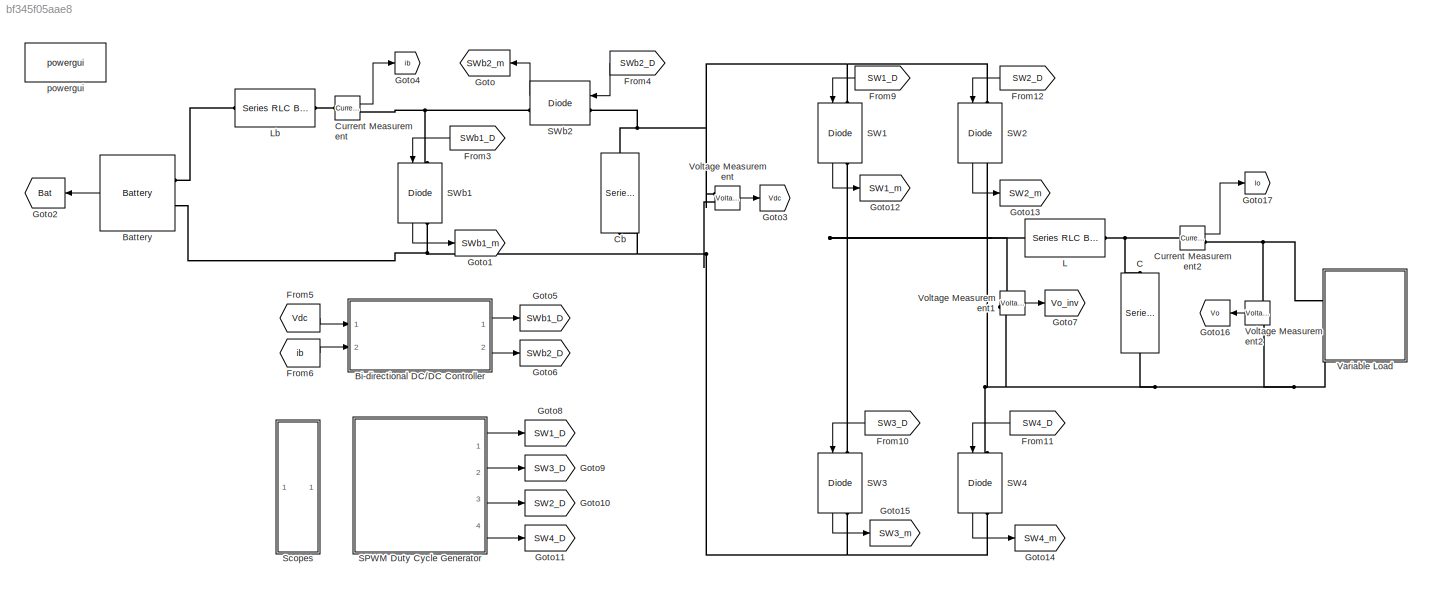
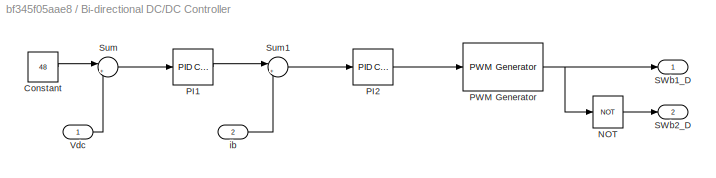
MODEL slx_bf345f05aae8
KIND model
CONFIG AbsTol = auto
CONFIG EnableMultiTasking = off
CONFIG FixedStep = auto
CONFIG MaxStep = auto
CONFIG MinStep = auto
CONFIG RelTol = 1e-3
CONFIG SampleTimeConstraint = Unconstrained
CONFIG SolverName = VariableStepAuto
CONFIG StartTime = 0.0
CONFIG StopTime = 8
WORKSPACE source: mxarray member
WORKSPACE Vdc = 1
BLOCK [Reference] Battery  REF=spsBatteryLib/Battery
  Ports = [0, 1, 0, 0, 0, 2]
  SourceBlock = spsBatteryLib/Battery
  SourceProductBaseCode = PS
  SourceType = Battery
BLOCK [SubSystem] Bi-directional DC//DC Controller
  Ports = [2, 2]
  RequestExecContextInheritance = off
BLOCK [Constant] Bi-directional DC//DC Controller/Constant
  Value = 48
BLOCK [Logic] Bi-directional DC//DC Controller/NOT
  AllPortsSameDT = off
  IconShape = distinctive
  Operator = NOT
  OutDataTypeStr = boolean
  Ports = [1, 1]
BLOCK [Reference] Bi-directional DC//DC Controller/PI1  REF=slpidlib/PID Controller
  Ports = [1, 1]
  SourceBlock = slpidlib/PID Controller
  SourceProductBaseCode = SL
  SourceType = PID 1dof
BLOCK [Reference] Bi-directional DC//DC Controller/PI2  REF=slpidlib/PID Controller
  Ports = [1, 1]
  SourceBlock = slpidlib/PID Controller
  SourceProductBaseCode = SL
  SourceType = PID 1dof
BLOCK [Reference] Bi-directional DC//DC Controller/PWM Generator  REF=eePwmGenerator/PWM Generator
  Ports = [1, 1]
  SourceBlock = eePwmGenerator/PWM Generator
  SourceProductBaseCode = PS
  SourceType = PWM Generator
BLOCK [Outport] Bi-directional DC//DC Controller/SWb1_D
BLOCK [Outport] Bi-directional DC//DC Controller/SWb2_D
  Port = 2
BLOCK [Sum] Bi-directional DC//DC Controller/Sum
  Inputs = |+-
  Ports = [2, 1]
BLOCK [Sum] Bi-directional DC//DC Controller/Sum1
  Inputs = |+-
  Ports = [2, 1]
BLOCK [Inport] Bi-directional DC//DC Controller/Vdc
BLOCK [Inport] Bi-directional DC//DC Controller/ib
  Port = 2
BLOCK [Reference] C  REF=spsSeriesRLCBranchLib/Series RLC Branch
  NameLocation = left
  Ports = [0, 0, 0, 0, 0, 1, 1]
  SourceBlock = spsSeriesRLCBranchLib/Series RLC Branch
  SourceProductBaseCode = PS
  SourceType = Series RLC Branch
BLOCK [Reference] Cb  REF=spsSeriesRLCBranchLib/Series RLC Branch
  NameLocation = left
  Ports = [0, 0, 0, 0, 0, 1, 1]
  SourceBlock = spsSeriesRLCBranchLib/Series RLC Branch
  SourceProductBaseCode = PS
  SourceType = Series RLC Branch
BLOCK [Reference] Current Measurement  REF=spsCurrentMeasurementLib/Current Measurement
  Ports = [0, 1, 0, 0, 0, 1, 1]
  SourceBlock = spsCurrentMeasurementLib/Current Measurement
  SourceProductBaseCode = PS
  SourceType = Current Measurement
  UserDataPersistent = on
BLOCK [Reference] Current Measurement2  REF=spsCurrentMeasurementLib/Current Measurement
  Ports = [0, 1, 0, 0, 0, 1, 1]
  SourceBlock = spsCurrentMeasurementLib/Current Measurement
  SourceProductBaseCode = PS
  SourceType = Current Measurement
  UserDataPersistent = on
BLOCK [From] From10
  GotoTag = SW3_D
  TagVisibility = global
BLOCK [From] From11
  GotoTag = SW4_D
  TagVisibility = global
BLOCK [From] From12
  GotoTag = SW2_D
  TagVisibility = global
BLOCK [From] From3
  GotoTag = SWb1_D
  TagVisibility = global
BLOCK [From] From4
  GotoTag = SWb2_D
  TagVisibility = global
BLOCK [From] From5
  GotoTag = Vdc
  TagVisibility = global
BLOCK [From] From6
  GotoTag = ib
  TagVisibility = global
BLOCK [From] From9
  GotoTag = SW1_D
  TagVisibility = global
BLOCK [Goto] Goto
  GotoTag = SWb2_m
  TagVisibility = global
BLOCK [Goto] Goto1
  GotoTag = SWb1_m
  TagVisibility = global
BLOCK [Goto] Goto10
  GotoTag = SW2_D
  TagVisibility = global
BLOCK [Goto] Goto11
  GotoTag = SW4_D
  TagVisibility = global
BLOCK [Goto] Goto12
  GotoTag = SW1_m
  TagVisibility = global
BLOCK [Goto] Goto13
  GotoTag = SW2_m
  TagVisibility = global
BLOCK [Goto] Goto14
  GotoTag = SW4_m
  TagVisibility = global
BLOCK [Goto] Goto15
  GotoTag = SW3_m
  TagVisibility = global
BLOCK [Goto] Goto16
  GotoTag = Vo
  TagVisibility = global
BLOCK [Goto] Goto17
  GotoTag = Io
  TagVisibility = global
BLOCK [Goto] Goto2
  GotoTag = Bat
  TagVisibility = global
BLOCK [Goto] Goto3
  GotoTag = Vdc
  TagVisibility = global
BLOCK [Goto] Goto4
  GotoTag = ib
  TagVisibility = global
BLOCK [Goto] Goto5
  GotoTag = SWb1_D
  TagVisibility = global
BLOCK [Goto] Goto6
  GotoTag = SWb2_D
  TagVisibility = global
BLOCK [Goto] Goto7
  GotoTag = Vo_inv
  TagVisibility = global
BLOCK [Goto] Goto8
  GotoTag = SW1_D
  TagVisibility = global
BLOCK [Goto] Goto9
  GotoTag = SW3_D
  TagVisibility = global
BLOCK [Reference] L  REF=spsSeriesRLCBranchLib/Series RLC Branch
  Ports = [0, 0, 0, 0, 0, 1, 1]
  SourceBlock = spsSeriesRLCBranchLib/Series RLC Branch
  SourceProductBaseCode = PS
  SourceType = Series RLC Branch
BLOCK [Reference] Lb  REF=spsSeriesRLCBranchLib/Series RLC Branch
  Ports = [0, 0, 0, 0, 0, 1, 1]
  SourceBlock = spsSeriesRLCBranchLib/Series RLC Branch
  SourceProductBaseCode = PS
  SourceType = Series RLC Branch
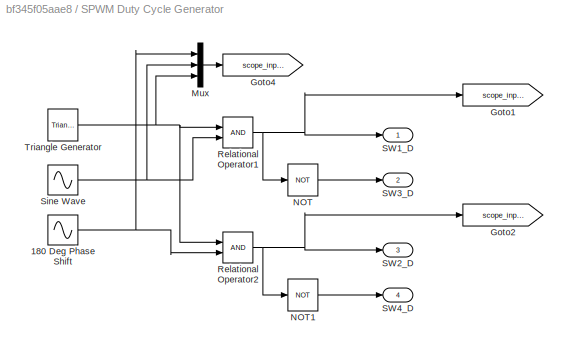
BLOCK [SubSystem] SPWM Duty Cycle Generator
  Ports = [0, 4]
  RequestExecContextInheritance = off
BLOCK [Sin] SPWM Duty Cycle Generator/180 Deg Phase Shift
  Amplitude = 0.95
  Frequency = 2*pi*50
  Phase = pi
  Ports = [0, 1]
  SampleTime = 0
BLOCK [Goto] SPWM Duty Cycle Generator/Goto1
  GotoTag = scope_input_2
  TagVisibility = global
BLOCK [Goto] SPWM Duty Cycle Generator/Goto2
  GotoTag = scope_input_3
  TagVisibility = global
BLOCK [Goto] SPWM Duty Cycle Generator/Goto4
  GotoTag = scope_input_1
  TagVisibility = global
BLOCK [Mux] SPWM Duty Cycle Generator/Mux
  DisplayOption = bar
  Inputs = 3
  Ports = [3, 1]
BLOCK [Logic] SPWM Duty Cycle Generator/NOT
  AllPortsSameDT = off
  IconShape = distinctive
  Operator = NOT
  OutDataTypeStr = boolean
  Ports = [1, 1]
BLOCK [Logic] SPWM Duty Cycle Generator/NOT1
  AllPortsSameDT = off
  IconShape = distinctive
  Operator = NOT
  OutDataTypeStr = boolean
  Ports = [1, 1]
BLOCK [RelationalOperator] SPWM Duty Cycle Generator/Relational Operator1
  InputSameDT = off
  OutDataTypeStr = boolean
  Ports = [2, 1]
  RndMeth = Simplest
BLOCK [RelationalOperator] SPWM Duty Cycle Generator/Relational Operator2
  InputSameDT = off
  OutDataTypeStr = boolean
  Ports = [2, 1]
  RndMeth = Simplest
BLOCK [Outport] SPWM Duty Cycle Generator/SW1_D
BLOCK [Outport] SPWM Duty Cycle Generator/SW2_D
  Port = 3
BLOCK [Outport] SPWM Duty Cycle Generator/SW3_D
  Port = 2
BLOCK [Outport] SPWM Duty Cycle Generator/SW4_D
  Port = 4
BLOCK [Sin] SPWM Duty Cycle Generator/Sine Wave
  Amplitude = 0.95
  Frequency = 2*pi*50
  Ports = [0, 1]
  SampleTime = 0
BLOCK [Reference] SPWM Duty Cycle Generator/Triangle Generator  REF=plecslib_extras2/Modulators/Triangle
Generator
  Ports = [0, 1]
  SourceBlock = plecslib_extras2/Modulators/Triangle\nGenerator
  SourceProductName = PLECS Extras
  SourceType = Symmetric Triangle Generator
BLOCK [Reference] SW1  REF=spsIGBTDiodeLib/IGBT//Diode
  NameLocation = left
  Ports = [1, 1, 0, 0, 0, 1, 1]
  SourceBlock = spsIGBTDiodeLib/IGBT//Diode
  SourceProductBaseCode = PS
  SourceType = IGBT/Diode
BLOCK [Reference] SW2  REF=spsIGBTDiodeLib/IGBT//Diode
  NameLocation = left
  Ports = [1, 1, 0, 0, 0, 1, 1]
  SourceBlock = spsIGBTDiodeLib/IGBT//Diode
  SourceProductBaseCode = PS
  SourceType = IGBT/Diode
BLOCK [Reference] SW3  REF=spsIGBTDiodeLib/IGBT//Diode
  NameLocation = left
  Ports = [1, 1, 0, 0, 0, 1, 1]
  SourceBlock = spsIGBTDiodeLib/IGBT//Diode
  SourceProductBaseCode = PS
  SourceType = IGBT/Diode
BLOCK [Reference] SW4  REF=spsIGBTDiodeLib/IGBT//Diode
  NameLocation = left
  Ports = [1, 1, 0, 0, 0, 1, 1]
  SourceBlock = spsIGBTDiodeLib/IGBT//Diode
  SourceProductBaseCode = PS
  SourceType = IGBT/Diode
BLOCK [Reference] SWb1  REF=spsIGBTDiodeLib/IGBT//Diode
  NameLocation = left
  Ports = [1, 1, 0, 0, 0, 1, 1]
  SourceBlock = spsIGBTDiodeLib/IGBT//Diode
  SourceProductBaseCode = PS
  SourceType = IGBT/Diode
BLOCK [Reference] SWb2  REF=spsIGBTDiodeLib/IGBT//Diode
  Ports = [1, 1, 0, 0, 0, 1, 1]
  SourceBlock = spsIGBTDiodeLib/IGBT//Diode
  SourceProductBaseCode = PS
  SourceType = IGBT/Diode
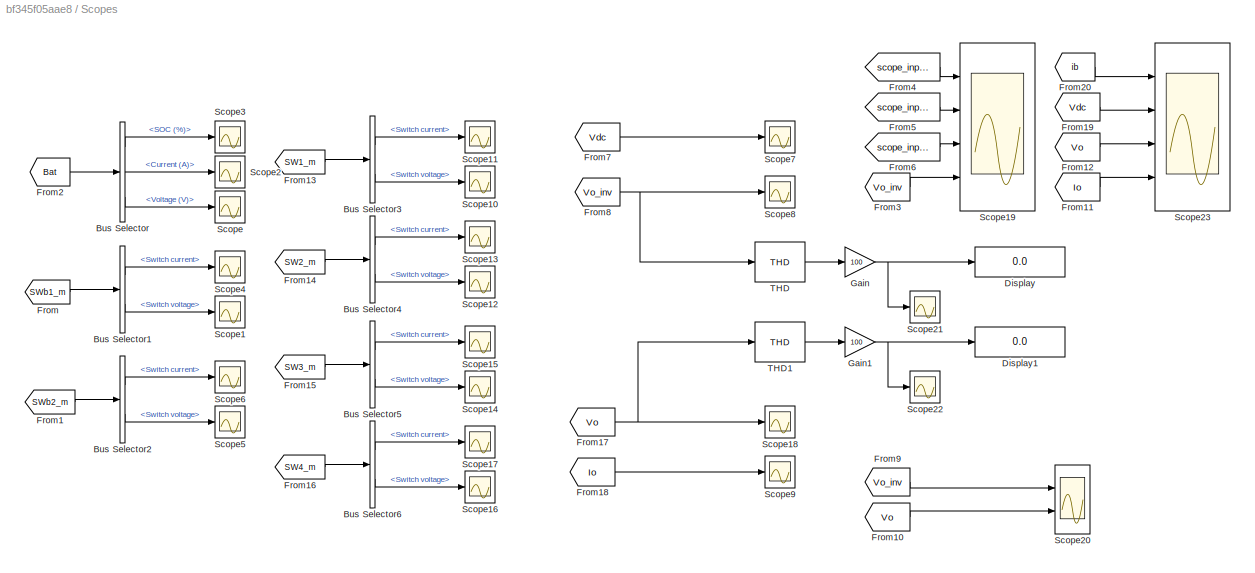
BLOCK [SubSystem] Scopes
  Ports = []
  RequestExecContextInheritance = off
BLOCK [BusSelector] Scopes/Bus Selector
  NameLocation = top
  OutputSignals = SOC (%),Current (A),Voltage (V)
  Ports = [1, 3]
BLOCK [BusSelector] Scopes/Bus Selector1
  NameLocation = top
  OutputSignals = Switch current,Switch voltage
  Ports = [1, 2]
BLOCK [BusSelector] Scopes/Bus Selector2
  NameLocation = top
  OutputSignals = Switch current,Switch voltage
  Ports = [1, 2]
BLOCK [BusSelector] Scopes/Bus Selector3
  NameLocation = top
  OutputSignals = Switch current,Switch voltage
  Ports = [1, 2]
BLOCK [BusSelector] Scopes/Bus Selector4
  NameLocation = top
  OutputSignals = Switch current,Switch voltage
  Ports = [1, 2]
BLOCK [BusSelector] Scopes/Bus Selector5
  NameLocation = top
  OutputSignals = Switch current,Switch voltage
  Ports = [1, 2]
BLOCK [BusSelector] Scopes/Bus Selector6
  NameLocation = top
  OutputSignals = Switch current,Switch voltage
  Ports = [1, 2]
BLOCK [Display] Scopes/Display
  Decimation = 1
  Ports = [1]
BLOCK [Display] Scopes/Display1
  Decimation = 1
  Ports = [1]
BLOCK [From] Scopes/From
  GotoTag = SWb1_m
  TagVisibility = global
BLOCK [From] Scopes/From1
  GotoTag = SWb2_m
  TagVisibility = global
BLOCK [From] Scopes/From10
  GotoTag = Vo
  TagVisibility = global
BLOCK [From] Scopes/From11
  GotoTag = Io
  TagVisibility = global
BLOCK [From] Scopes/From12
  GotoTag = Vo
  TagVisibility = global
BLOCK [From] Scopes/From13
  GotoTag = SW1_m
  TagVisibility = global
BLOCK [From] Scopes/From14
  GotoTag = SW2_m
  TagVisibility = global
BLOCK [From] Scopes/From15
  GotoTag = SW3_m
  TagVisibility = global
BLOCK [From] Scopes/From16
  GotoTag = SW4_m
  TagVisibility = global
BLOCK [From] Scopes/From17
  GotoTag = Vo
  TagVisibility = global
BLOCK [From] Scopes/From18
  GotoTag = Io
  TagVisibility = global
BLOCK [From] Scopes/From19
  GotoTag = Vdc
  TagVisibility = global
BLOCK [From] Scopes/From2
  GotoTag = Bat
  TagVisibility = global
BLOCK [From] Scopes/From20
  GotoTag = ib
  TagVisibility = global
BLOCK [From] Scopes/From3
  GotoTag = Vo_inv
  TagVisibility = global
BLOCK [From] Scopes/From4
  GotoTag = scope_input_1
  TagVisibility = global
BLOCK [From] Scopes/From5
  GotoTag = scope_input_2
  TagVisibility = global
BLOCK [From] Scopes/From6
  GotoTag = scope_input_3
  TagVisibility = global
BLOCK [From] Scopes/From7
  GotoTag = Vdc
  TagVisibility = global
BLOCK [From] Scopes/From8
  GotoTag = Vo_inv
  TagVisibility = global
BLOCK [From] Scopes/From9
  GotoTag = Vo_inv
  TagVisibility = global
BLOCK [Gain] Scopes/Gain
  Gain = 100
BLOCK [Gain] Scopes/Gain1
  Gain = 100
BLOCK [Scope] Scopes/Scope
  Floating = off
  NameLocation = top
  NumInputPorts = 1
  Ports = [1]
  ScopeSpecificationString = Simulink.scopes.TimeScopeBlockCfg('CurrentConfiguration', extmgr.ConfigurationSet(extmgr.Configuration('Core','General UI',true),extmgr.Configuration('Core','Source UI',true),extmgr.Configuration('Sources','WiredSimulink',true),extmgr.Configuration('Visuals','Time Domain',true,'SerializedDisplays',{struct('MinYLimReal','25.52046','MaxYLimReal','25.60957','YLabelReal','','MinYLimMag','25.52046','Ma...<+1389ch>
BLOCK [Scope] Scopes/Scope1
  Floating = off
  NumInputPorts = 1
  Ports = [1]
  ScopeSpecificationString = Simulink.scopes.TimeScopeBlockCfg('CurrentConfiguration', extmgr.ConfigurationSet(extmgr.Configuration('Core','General UI',true),extmgr.Configuration('Core','Source UI',true),extmgr.Configuration('Sources','WiredSimulink',true,'DataLoggingVariableName','ScopeData1'),extmgr.Configuration('Visuals','Time Domain',true,'SerializedDisplays',{struct('MinYLimReal','-0.1853','MaxYLimReal','1.66774','YLabe...<+1392ch>
BLOCK [Scope] Scopes/Scope10
  Floating = off
  NumInputPorts = 1
  Ports = [1]
  ScopeSpecificationString = Simulink.scopes.TimeScopeBlockCfg('CurrentConfiguration', extmgr.ConfigurationSet(extmgr.Configuration('Core','General UI',true),extmgr.Configuration('Core','Source UI',true),extmgr.Configuration('Sources','WiredSimulink',true,'DataLoggingVariableName','ScopeData1'),extmgr.Configuration('Visuals','Time Domain',true,'SerializedDisplays',{struct('MinYLimReal','-0.1853','MaxYLimReal','1.66774','YLabe...<+1392ch>
BLOCK [Scope] Scopes/Scope11
  Floating = off
  NumInputPorts = 1
  Ports = [1]
  ScopeSpecificationString = Simulink.scopes.TimeScopeBlockCfg('CurrentConfiguration', extmgr.ConfigurationSet(extmgr.Configuration('Core','General UI',true),extmgr.Configuration('Core','Source UI',true),extmgr.Configuration('Sources','WiredSimulink',true,'DataLoggingVariableName','ScopeData2'),extmgr.Configuration('Visuals','Time Domain',true,'SerializedDisplays',{struct('MinYLimReal','-5.73711','MaxYLimReal','5.04105','YLab...<+1436ch>
BLOCK [Scope] Scopes/Scope12
  Floating = off
  NumInputPorts = 1
  Ports = [1]
  ScopeSpecificationString = Simulink.scopes.TimeScopeBlockCfg('CurrentConfiguration', extmgr.ConfigurationSet(extmgr.Configuration('Core','General UI',true),extmgr.Configuration('Core','Source UI',true),extmgr.Configuration('Sources','WiredSimulink',true,'DataLoggingVariableName','ScopeData3'),extmgr.Configuration('Visuals','Time Domain',true,'SerializedDisplays',{struct('MinYLimReal','-0.1853','MaxYLimReal','1.66774','YLabe...<+1392ch>
BLOCK [Scope] Scopes/Scope13
  Floating = off
  NumInputPorts = 1
  Ports = [1]
  ScopeSpecificationString = Simulink.scopes.TimeScopeBlockCfg('CurrentConfiguration', extmgr.ConfigurationSet(extmgr.Configuration('Core','General UI',true),extmgr.Configuration('Core','Source UI',true),extmgr.Configuration('Sources','WiredSimulink',true,'DataLoggingVariableName','ScopeData4'),extmgr.Configuration('Visuals','Time Domain',true,'SerializedDisplays',{struct('MinYLimReal','-5.73711','MaxYLimReal','5.04105','YLab...<+1436ch>
BLOCK [Scope] Scopes/Scope14
  Floating = off
  NumInputPorts = 1
  Ports = [1]
  ScopeSpecificationString = Simulink.scopes.TimeScopeBlockCfg('CurrentConfiguration', extmgr.ConfigurationSet(extmgr.Configuration('Core','General UI',true),extmgr.Configuration('Core','Source UI',true),extmgr.Configuration('Sources','WiredSimulink',true,'DataLoggingVariableName','ScopeData5'),extmgr.Configuration('Visuals','Time Domain',true,'SerializedDisplays',{struct('MinYLimReal','-0.1853','MaxYLimReal','1.66774','YLabe...<+1392ch>
BLOCK [Scope] Scopes/Scope15
  Floating = off
  NumInputPorts = 1
  Ports = [1]
  ScopeSpecificationString = Simulink.scopes.TimeScopeBlockCfg('CurrentConfiguration', extmgr.ConfigurationSet(extmgr.Configuration('Core','General UI',true),extmgr.Configuration('Core','Source UI',true),extmgr.Configuration('Sources','WiredSimulink',true,'DataLoggingVariableName','ScopeData6'),extmgr.Configuration('Visuals','Time Domain',true,'SerializedDisplays',{struct('MinYLimReal','-5.73711','MaxYLimReal','5.04105','YLab...<+1436ch>
BLOCK [Scope] Scopes/Scope16
  Floating = off
  NumInputPorts = 1
  Ports = [1]
  ScopeSpecificationString = Simulink.scopes.TimeScopeBlockCfg('CurrentConfiguration', extmgr.ConfigurationSet(extmgr.Configuration('Core','General UI',true),extmgr.Configuration('Core','Source UI',true),extmgr.Configuration('Sources','WiredSimulink',true,'DataLoggingVariableName','ScopeData7'),extmgr.Configuration('Visuals','Time Domain',true,'SerializedDisplays',{struct('MinYLimReal','-0.1853','MaxYLimReal','1.66774','YLabe...<+1392ch>
BLOCK [Scope] Scopes/Scope17
  Floating = off
  NumInputPorts = 1
  Ports = [1]
  ScopeSpecificationString = Simulink.scopes.TimeScopeBlockCfg('CurrentConfiguration', extmgr.ConfigurationSet(extmgr.Configuration('Core','General UI',true),extmgr.Configuration('Core','Source UI',true),extmgr.Configuration('Sources','WiredSimulink',true,'DataLoggingVariableName','ScopeData8'),extmgr.Configuration('Visuals','Time Domain',true,'SerializedDisplays',{struct('MinYLimReal','-5.73711','MaxYLimReal','5.04105','YLab...<+1436ch>
BLOCK [Scope] Scopes/Scope18
  Floating = off
  NumInputPorts = 1
  Ports = [1]
  ScopeSpecificationString = Simulink.scopes.TimeScopeBlockCfg('CurrentConfiguration', extmgr.ConfigurationSet(extmgr.Configuration('Core','General UI',true),extmgr.Configuration('Core','Source UI',true),extmgr.Configuration('Sources','WiredSimulink',true,'DataLogging',true,'DataLoggingVariableName','Vo'),extmgr.Configuration('Visuals','Time Domain',true,'SerializedDisplays',{struct('MinYLimReal','-60.23331','MaxYLimReal','60...<+1509ch>
BLOCK [Scope] Scopes/Scope19
  Floating = off
  NumInputPorts = 4
  Ports = [4]
  ScopeSpecificationString = Simulink.scopes.TimeScopeBlockCfg('CurrentConfiguration', extmgr.ConfigurationSet(extmgr.Configuration('Core','General UI',true,'FigureColor',[1 1 1]),extmgr.Configuration('Core','Source UI',true),extmgr.Configuration('Sources','WiredSimulink',true,'DataLoggingVariableName','ScopeData1'),extmgr.Configuration('Visuals','Time Domain',true,'SerializedDisplays',{struct('MinYLimReal','-1.25','MaxYLimRe...<+4232ch>
BLOCK [Scope] Scopes/Scope2
  Floating = off
  NameLocation = top
  NumInputPorts = 1
  Ports = [1]
  ScopeSpecificationString = Simulink.scopes.TimeScopeBlockCfg('CurrentConfiguration', extmgr.ConfigurationSet(extmgr.Configuration('Core','General UI',true),extmgr.Configuration('Core','Source UI',true),extmgr.Configuration('Sources','WiredSimulink',true,'DataLoggingVariableName','ScopeData2'),extmgr.Configuration('Visuals','Time Domain',true,'SerializedDisplays',{struct('MinYLimReal','-299.76668','MaxYLimReal','321.81472','...<+1465ch>
BLOCK [Scope] Scopes/Scope20
  Floating = off
  NumInputPorts = 2
  Ports = [2]
  ScopeSpecificationString = Simulink.scopes.TimeScopeBlockCfg('CurrentConfiguration', extmgr.ConfigurationSet(extmgr.Configuration('Core','General UI',true,'FigureColor',[1 1 1]),extmgr.Configuration('Core','Source UI',true),extmgr.Configuration('Sources','WiredSimulink',true,'DataLoggingVariableName','ScopeData2'),extmgr.Configuration('Visuals','Time Domain',true,'SerializedDisplays',{struct('MinYLimReal','-4.73829','MaxYLi...<+2284ch>
BLOCK [Scope] Scopes/Scope21
  Floating = off
  NumInputPorts = 1
  Ports = [1]
  ScopeSpecificationString = Simulink.scopes.TimeScopeBlockCfg('CurrentConfiguration', extmgr.ConfigurationSet(extmgr.Configuration('Core','General UI',true),extmgr.Configuration('Core','Source UI',true),extmgr.Configuration('Sources','WiredSimulink',true,'DataLogging',true,'DataLoggingVariableName','ScopeData1'),extmgr.Configuration('Visuals','Time Domain',true,'SerializedDisplays',{struct('MinYLimReal','-12.66674','MaxYLimR...<+1473ch>
BLOCK [Scope] Scopes/Scope22
  Floating = off
  NumInputPorts = 1
  Ports = [1]
  ScopeSpecificationString = Simulink.scopes.TimeScopeBlockCfg('CurrentConfiguration', extmgr.ConfigurationSet(extmgr.Configuration('Core','General UI',true),extmgr.Configuration('Core','Source UI',true),extmgr.Configuration('Sources','WiredSimulink',true,'DataLogging',true,'DataLoggingVariableName','ScopeData2'),extmgr.Configuration('Visuals','Time Domain',true,'SerializedDisplays',{struct('MinYLimReal','-3.23063','MaxYLimRe...<+1462ch>
BLOCK [Scope] Scopes/Scope23
  Floating = off
  NumInputPorts = 4
  Ports = [4]
  ScopeSpecificationString = Simulink.scopes.TimeScopeBlockCfg('CurrentConfiguration', extmgr.ConfigurationSet(extmgr.Configuration('Core','General UI',true,'FigureColor',[1 1 1]),extmgr.Configuration('Core','Source UI',true),extmgr.Configuration('Sources','WiredSimulink',true,'DataLoggingVariableName','ScopeData3'),extmgr.Configuration('Visuals','Time Domain',true,'SerializedDisplays',{struct('MinYLimReal','-144.14269','MaxY...<+4162ch>
BLOCK [Scope] Scopes/Scope3
  Floating = off
  NameLocation = top
  NumInputPorts = 1
  Ports = [1]
  ScopeSpecificationString = Simulink.scopes.TimeScopeBlockCfg('CurrentConfiguration', extmgr.ConfigurationSet(extmgr.Configuration('Core','General UI',true),extmgr.Configuration('Core','Source UI',true),extmgr.Configuration('Sources','WiredSimulink',true,'DataLoggingVariableName','ScopeData3'),extmgr.Configuration('Visuals','Time Domain',true,'SerializedDisplays',{struct('MinYLimReal','29.9923','MaxYLimReal','30.00086','YLab...<+1414ch>
BLOCK [Scope] Scopes/Scope4
  Floating = off
  NumInputPorts = 1
  Ports = [1]
  ScopeSpecificationString = Simulink.scopes.TimeScopeBlockCfg('CurrentConfiguration', extmgr.ConfigurationSet(extmgr.Configuration('Core','General UI',true),extmgr.Configuration('Core','Source UI',true),extmgr.Configuration('Sources','WiredSimulink',true,'DataLoggingVariableName','ScopeData2'),extmgr.Configuration('Visuals','Time Domain',true,'SerializedDisplays',{struct('MinYLimReal','-2.9583','MaxYLimReal','4.51426','YLabe...<+1425ch>
BLOCK [Scope] Scopes/Scope5
  Floating = off
  NumInputPorts = 1
  Ports = [1]
  ScopeSpecificationString = Simulink.scopes.TimeScopeBlockCfg('CurrentConfiguration', extmgr.ConfigurationSet(extmgr.Configuration('Core','General UI',true),extmgr.Configuration('Core','Source UI',true),extmgr.Configuration('Sources','WiredSimulink',true,'DataLoggingVariableName','ScopeData3'),extmgr.Configuration('Visuals','Time Domain',true,'SerializedDisplays',{struct('MinYLimReal','-0.1853','MaxYLimReal','1.66774','YLabe...<+1392ch>
BLOCK [Scope] Scopes/Scope6
  Floating = off
  NumInputPorts = 1
  Ports = [1]
  ScopeSpecificationString = Simulink.scopes.TimeScopeBlockCfg('CurrentConfiguration', extmgr.ConfigurationSet(extmgr.Configuration('Core','General UI',true),extmgr.Configuration('Core','Source UI',true),extmgr.Configuration('Sources','WiredSimulink',true,'DataLoggingVariableName','ScopeData4'),extmgr.Configuration('Visuals','Time Domain',true,'SerializedDisplays',{struct('MinYLimReal','-2.7392','MaxYLimReal','1.26304','YLabe...<+1432ch>
BLOCK [Scope] Scopes/Scope7
  Floating = off
  NumInputPorts = 1
  Ports = [1]
  ScopeSpecificationString = Simulink.scopes.TimeScopeBlockCfg('CurrentConfiguration', extmgr.ConfigurationSet(extmgr.Configuration('Core','General UI',true),extmgr.Configuration('Core','Source UI',true),extmgr.Configuration('Sources','WiredSimulink',true,'DataLoggingVariableName','ScopeData1'),extmgr.Configuration('Visuals','Time Domain',true,'SerializedDisplays',{struct('MinYLimReal','-6.31646','MaxYLimReal','56.84813','YLa...<+1501ch>
BLOCK [Scope] Scopes/Scope8
  Floating = off
  NumInputPorts = 1
  Ports = [1]
  ScopeSpecificationString = Simulink.scopes.TimeScopeBlockCfg('CurrentConfiguration', extmgr.ConfigurationSet(extmgr.Configuration('Core','General UI',true),extmgr.Configuration('Core','Source UI',true),extmgr.Configuration('Sources','WiredSimulink',true,'DataLogging',true,'DataLoggingVariableName','Vo_inv'),extmgr.Configuration('Visuals','Time Domain',true,'SerializedDisplays',{struct('MinYLimReal','-28.66279','MaxYLimReal'...<+1481ch>
BLOCK [Scope] Scopes/Scope9
  Floating = off
  NumInputPorts = 1
  Ports = [1]
  ScopeSpecificationString = Simulink.scopes.TimeScopeBlockCfg('CurrentConfiguration', extmgr.ConfigurationSet(extmgr.Configuration('Core','General UI',true),extmgr.Configuration('Core','Source UI',true),extmgr.Configuration('Sources','WiredSimulink',true,'DataLogging',true,'DataLoggingVariableName','Vgrid1'),extmgr.Configuration('Visuals','Time Domain',true,'SerializedDisplays',{struct('MinYLimReal','-60.05987','MaxYLimReal'...<+1513ch>
BLOCK [Reference] Scopes/THD  REF=spsTHDLib/THD
  Ports = [1, 1]
  SourceBlock = spsTHDLib/THD
  SourceProductBaseCode = PS
  SourceType = THD
BLOCK [Reference] Scopes/THD1  REF=spsTHDLib/THD
  Ports = [1, 1]
  SourceBlock = spsTHDLib/THD
  SourceProductBaseCode = PS
  SourceType = THD
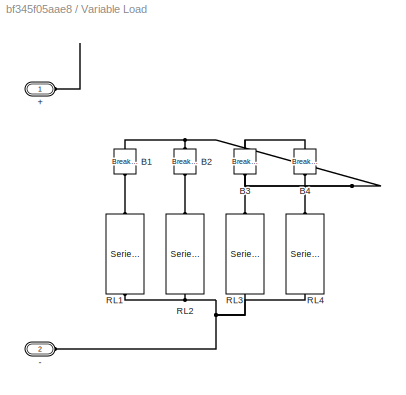
BLOCK [SubSystem] Variable Load
  Ports = [0, 0, 0, 0, 0, 2]
  RequestExecContextInheritance = off
BLOCK [PMIOPort] Variable Load/+
  Side = Left
BLOCK [PMIOPort] Variable Load/-
  Port = 2
  Side = Left
BLOCK [Reference] Variable Load/B1  REF=spsBreakerLib/Breaker
  NameLocation = left
  Ports = [0, 0, 0, 0, 0, 1, 1]
  SourceBlock = spsBreakerLib/Breaker
  SourceProductBaseCode = PS
  SourceType = Breaker
BLOCK [Reference] Variable Load/B2  REF=spsBreakerLib/Breaker
  NameLocation = left
  Ports = [0, 0, 0, 0, 0, 1, 1]
  SourceBlock = spsBreakerLib/Breaker
  SourceProductBaseCode = PS
  SourceType = Breaker
BLOCK [Reference] Variable Load/B3  REF=spsBreakerLib/Breaker
  NameLocation = left
  Ports = [0, 0, 0, 0, 0, 1, 1]
  SourceBlock = spsBreakerLib/Breaker
  SourceProductBaseCode = PS
  SourceType = Breaker
BLOCK [Reference] Variable Load/B4  REF=spsBreakerLib/Breaker
  NameLocation = left
  Ports = [0, 0, 0, 0, 0, 1, 1]
  SourceBlock = spsBreakerLib/Breaker
  SourceProductBaseCode = PS
  SourceType = Breaker
BLOCK [Reference] Variable Load/RL1  REF=spsSeriesRLCBranchLib/Series RLC Branch
  NameLocation = left
  Ports = [0, 0, 0, 0, 0, 1, 1]
  SourceBlock = spsSeriesRLCBranchLib/Series RLC Branch
  SourceProductBaseCode = PS
  SourceType = Series RLC Branch
BLOCK [Reference] Variable Load/RL2  REF=spsSeriesRLCBranchLib/Series RLC Branch
  NameLocation = left
  Ports = [0, 0, 0, 0, 0, 1, 1]
  SourceBlock = spsSeriesRLCBranchLib/Series RLC Branch
  SourceProductBaseCode = PS
  SourceType = Series RLC Branch
BLOCK [Reference] Variable Load/RL3  REF=spsSeriesRLCBranchLib/Series RLC Branch
  NameLocation = left
  Ports = [0, 0, 0, 0, 0, 1, 1]
  SourceBlock = spsSeriesRLCBranchLib/Series RLC Branch
  SourceProductBaseCode = PS
  SourceType = Series RLC Branch
BLOCK [Reference] Variable Load/RL4  REF=spsSeriesRLCBranchLib/Series RLC Branch
  NameLocation = left
  Ports = [0, 0, 0, 0, 0, 1, 1]
  SourceBlock = spsSeriesRLCBranchLib/Series RLC Branch
  SourceProductBaseCode = PS
  SourceType = Series RLC Branch
BLOCK [Reference] Voltage Measurement  REF=spsVoltageMeasurementLib/Voltage Measurement
  Ports = [0, 1, 0, 0, 0, 2]
  SourceBlock = spsVoltageMeasurementLib/Voltage Measurement
  SourceProductBaseCode = PS
  SourceType = Voltage Measurement
  UserDataPersistent = on
BLOCK [Reference] Voltage Measurement1  REF=spsVoltageMeasurementLib/Voltage Measurement
  Ports = [0, 1, 0, 0, 0, 2]
  SourceBlock = spsVoltageMeasurementLib/Voltage Measurement
  SourceProductBaseCode = PS
  SourceType = Voltage Measurement
  UserDataPersistent = on
BLOCK [Reference] Voltage Measurement2  REF=spsVoltageMeasurementLib/Voltage Measurement
  Ports = [0, 1, 0, 0, 0, 2]
  SourceBlock = spsVoltageMeasurementLib/Voltage Measurement
  SourceProductBaseCode = PS
  SourceType = Voltage Measurement
  UserDataPersistent = on
BLOCK [Reference] powergui  REF=spspowerguiLib/powergui
  Ports = []
  Priority = 1
  SourceBlock = spspowerguiLib/powergui
  SourceProductBaseCode = PS
  SourceType = PSB option menu block
LINE Battery:1 -> Goto2:1
LINE Bi-directional DC//DC Controller/Constant:1 -> Bi-directional DC//DC Controller/Sum:1
LINE Bi-directional DC//DC Controller/NOT:1 -> Bi-directional DC//DC Controller/SWb2_D:1
LINE Bi-directional DC//DC Controller/PI1:1 -> Bi-directional DC//DC Controller/Sum1:1
LINE Bi-directional DC//DC Controller/PI2:1 -> Bi-directional DC//DC Controller/PWM Generator:1
NET Bi-directional DC//DC Controller/PWM Generator:1 -> Bi-directional DC//DC Controller/NOT:1, Bi-directional DC//DC Controller/SWb1_D:1
LINE Bi-directional DC//DC Controller/Sum1:1 -> Bi-directional DC//DC Controller/PI2:1
LINE Bi-directional DC//DC Controller/Sum:1 -> Bi-directional DC//DC Controller/PI1:1
LINE Bi-directional DC//DC Controller/Vdc:1 -> Bi-directional DC//DC Controller/Sum:2
LINE Bi-directional DC//DC Controller/ib:1 -> Bi-directional DC//DC Controller/Sum1:2
LINE Bi-directional DC//DC Controller:1 -> Goto5:1
LINE Bi-directional DC//DC Controller:2 -> Goto6:1
LINE Current Measurement2:1 -> Goto17:1
LINE Current Measurement:1 -> Goto4:1
LINE From10:1 -> SW3:1
LINE From11:1 -> SW4:1
LINE From12:1 -> SW2:1
LINE From3:1 -> SWb1:1
LINE From4:1 -> SWb2:1
LINE From5:1 -> Bi-directional DC//DC Controller:1
LINE From6:1 -> Bi-directional DC//DC Controller:2
LINE From9:1 -> SW1:1
NET SPWM Duty Cycle Generator/180 Deg Phase Shift:1 -> SPWM Duty Cycle Generator/Mux:1, SPWM Duty Cycle Generator/Relational Operator2:2
LINE SPWM Duty Cycle Generator/Mux:1 -> SPWM Duty Cycle Generator/Goto4:1
LINE SPWM Duty Cycle Generator/NOT1:1 -> SPWM Duty Cycle Generator/SW4_D:1
LINE SPWM Duty Cycle Generator/NOT:1 -> SPWM Duty Cycle Generator/SW3_D:1
NET SPWM Duty Cycle Generator/Relational Operator1:1 -> SPWM Duty Cycle Generator/Goto1:1, SPWM Duty Cycle Generator/NOT:1, SPWM Duty Cycle Generator/SW1_D:1
NET SPWM Duty Cycle Generator/Relational Operator2:1 -> SPWM Duty Cycle Generator/Goto2:1, SPWM Duty Cycle Generator/NOT1:1, SPWM Duty Cycle Generator/SW2_D:1
NET SPWM Duty Cycle Generator/Sine Wave:1 -> SPWM Duty Cycle Generator/Mux:2, SPWM Duty Cycle Generator/Relational Operator1:2
NET SPWM Duty Cycle Generator/Triangle Generator:1 -> SPWM Duty Cycle Generator/Mux:3, SPWM Duty Cycle Generator/Relational Operator1:1, SPWM Duty Cycle Generator/Relational Operator2:1
LINE SPWM Duty Cycle Generator:1 -> Goto8:1
LINE SPWM Duty Cycle Generator:2 -> Goto9:1
LINE SPWM Duty Cycle Generator:3 -> Goto10:1
LINE SPWM Duty Cycle Generator:4 -> Goto11:1
LINE SW1:1 -> Goto12:1
LINE SW2:1 -> Goto13:1
LINE SW3:1 -> Goto15:1
LINE SW4:1 -> Goto14:1
LINE SWb1:1 -> Goto1:1
LINE SWb2:1 -> Goto:1
LINE Scopes/Bus Selector1:1 -> Scopes/Scope4:1
LINE Scopes/Bus Selector1:2 -> Scopes/Scope1:1
LINE Scopes/Bus Selector2:1 -> Scopes/Scope6:1
LINE Scopes/Bus Selector2:2 -> Scopes/Scope5:1
LINE Scopes/Bus Selector3:1 -> Scopes/Scope11:1
LINE Scopes/Bus Selector3:2 -> Scopes/Scope10:1
LINE Scopes/Bus Selector4:1 -> Scopes/Scope13:1
LINE Scopes/Bus Selector4:2 -> Scopes/Scope12:1
LINE Scopes/Bus Selector5:1 -> Scopes/Scope15:1
LINE Scopes/Bus Selector5:2 -> Scopes/Scope14:1
LINE Scopes/Bus Selector6:1 -> Scopes/Scope17:1
LINE Scopes/Bus Selector6:2 -> Scopes/Scope16:1
LINE Scopes/Bus Selector:1 -> Scopes/Scope3:1
LINE Scopes/Bus Selector:2 -> Scopes/Scope2:1
LINE Scopes/Bus Selector:3 -> Scopes/Scope:1
LINE Scopes/From10:1 -> Scopes/Scope20:2
LINE Scopes/From11:1 -> Scopes/Scope23:4
LINE Scopes/From12:1 -> Scopes/Scope23:3
LINE Scopes/From13:1 -> Scopes/Bus Selector3:1
LINE Scopes/From14:1 -> Scopes/Bus Selector4:1
LINE Scopes/From15:1 -> Scopes/Bus Selector5:1
LINE Scopes/From16:1 -> Scopes/Bus Selector6:1
NET Scopes/From17:1 -> Scopes/Scope18:1, Scopes/THD1:1
LINE Scopes/From18:1 -> Scopes/Scope9:1
LINE Scopes/From19:1 -> Scopes/Scope23:2
LINE Scopes/From1:1 -> Scopes/Bus Selector2:1
LINE Scopes/From20:1 -> Scopes/Scope23:1
LINE Scopes/From2:1 -> Scopes/Bus Selector:1
LINE Scopes/From3:1 -> Scopes/Scope19:4
LINE Scopes/From4:1 -> Scopes/Scope19:1
LINE Scopes/From5:1 -> Scopes/Scope19:2
LINE Scopes/From6:1 -> Scopes/Scope19:3
LINE Scopes/From7:1 -> Scopes/Scope7:1
NET Scopes/From8:1 -> Scopes/Scope8:1, Scopes/THD:1
LINE Scopes/From9:1 -> Scopes/Scope20:1
LINE Scopes/From:1 -> Scopes/Bus Selector1:1
NET Scopes/Gain1:1 -> Scopes/Display1:1, Scopes/Scope22:1
NET Scopes/Gain:1 -> Scopes/Display:1, Scopes/Scope21:1
LINE Scopes/THD1:1 -> Scopes/Gain1:1
LINE Scopes/THD:1 -> Scopes/Gain:1
LINE Voltage Measurement1:1 -> Goto7:1
LINE Voltage Measurement2:1 -> Goto16:1
LINE Voltage Measurement:1 -> Goto3:1
PLINE Battery:LConn1 -- Lb:LConn1
PNET net1: Battery:LConn2 -- Cb:RConn1 -- SW3:RConn1 -- SW4:RConn1 -- SWb1:RConn1 -- Voltage Measurement:LConn2
PNET net2: C:LConn1 -- Current Measurement2:LConn1 -- L:RConn1
PNET net3: C:RConn1 -- SW2:RConn1 -- SW4:LConn1 -- Variable Load:LConn2 -- Voltage Measurement1:LConn2 -- Voltage Measurement2:LConn2
PNET net4: Cb:LConn1 -- SW1:LConn1 -- SW2:LConn1 -- SWb2:LConn1 -- Voltage Measurement:LConn1
PNET net5: Current Measurement2:RConn1 -- Variable Load:LConn1 -- Voltage Measurement2:LConn1
PLINE Current Measurement:LConn1 -- Lb:RConn1
PNET net6: Current Measurement:RConn1 -- SWb1:LConn1 -- SWb2:RConn1
PNET net7: L:LConn1 -- SW1:RConn1 -- SW3:LConn1 -- Voltage Measurement1:LConn1
PNET net8: Variable Load/+:RConn1 -- Variable Load/B1:LConn1 -- Variable Load/B2:LConn1 -- Variable Load/B3:LConn1 -- Variable Load/B4:LConn1
PNET net9: Variable Load/-:RConn1 -- Variable Load/RL1:RConn1 -- Variable Load/RL2:RConn1 -- Variable Load/RL3:RConn1 -- Variable Load/RL4:RConn1
PLINE Variable Load/B1:RConn1 -- Variable Load/RL1:LConn1
PLINE Variable Load/B2:RConn1 -- Variable Load/RL2:LConn1
PLINE Variable Load/B3:RConn1 -- Variable Load/RL3:LConn1
PLINE Variable Load/B4:RConn1 -- Variable Load/RL4:LConn1
note: NET lines group one-source signal fan-out (src -> all destinations, sorted); 1:1 wires keep LINE; PNET lines group multi-terminal physical nets as a canonical sorted terminal list (undirected conserving connections); 2-terminal nets keep the pairwise PLINE form
